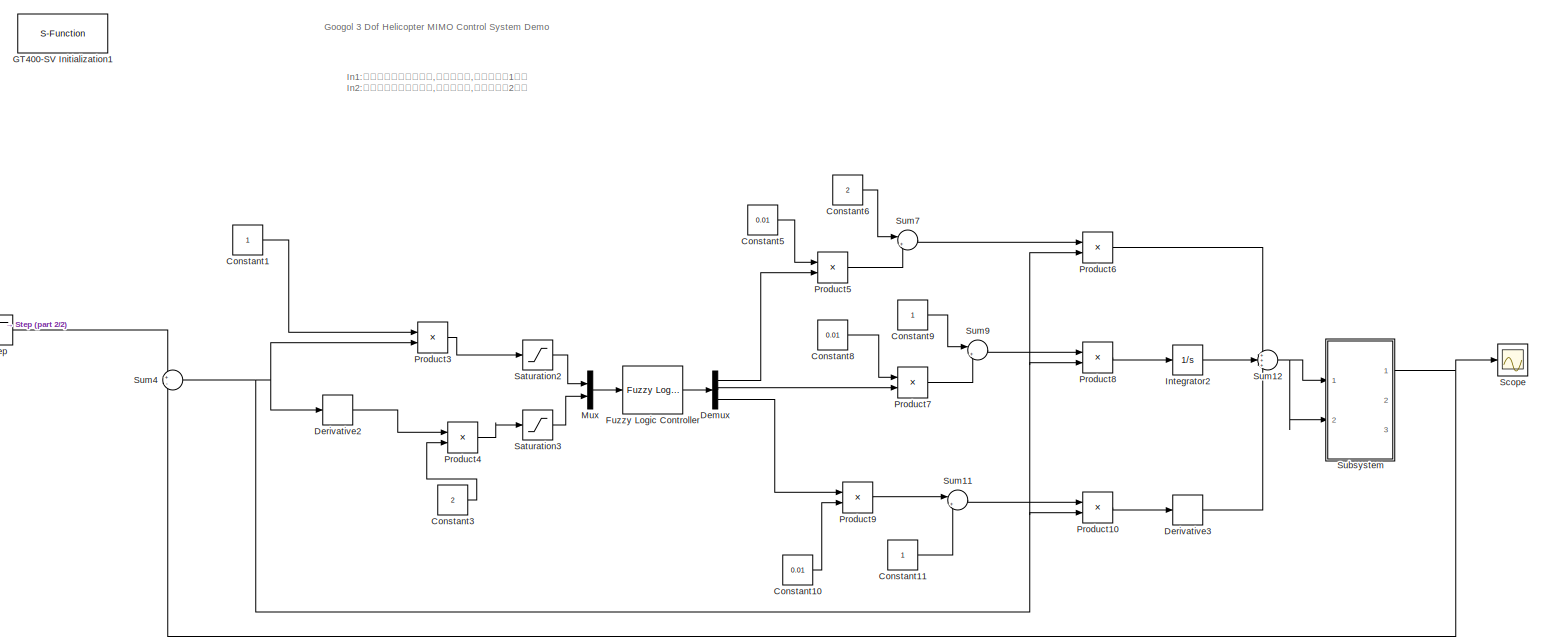
[diagram: root canvas - part 1/2, most of the canvas]
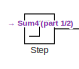
[diagram: root canvas - part 2/2, middle left region]
MODEL slx_5f1532d0b4ba
KIND model
BLOCK [Constant] Constant1
BLOCK [Constant] Constant10
  Value = 0.01
BLOCK [Constant] Constant11
BLOCK [Constant] Constant3
  Value = 2
BLOCK [Constant] Constant5
  Value = 0.01
BLOCK [Constant] Constant6
  Value = 2
BLOCK [Constant] Constant8
  Value = 0.01
BLOCK [Constant] Constant9
BLOCK [Demux] Demux
  DisplayOption = bar
  Outputs = 3
  Ports = [1, 3]
BLOCK [Derivative] Derivative2
BLOCK [Derivative] Derivative3
BLOCK [Reference] Fuzzy Logic Controller  REF=fuzblock/Fuzzy Logic   (lib defined in mdl_858b3b3e7478)
Controller
  Ports = [1, 1]
  SourceBlock = fuzblock/Fuzzy Logic \nController
  SourceType = FIS
  fis = [fy]
BLOCK [S-Function] GT400-SV Initialization1
  EnableBusSupport = off
  FunctionName = Initialize
  Parameters = openloop
  Ports = []
  Priority = 0
BLOCK [Integrator] Integrator2
  Ports = [1, 1]
BLOCK [Mux] Mux
  DisplayOption = bar
  Inputs = 2
  Ports = [2, 1]
BLOCK [Product] Product10
  InputSameDT = off
  OutDataTypeStr = Inherit: Inherit via internal rule
  Ports = [2, 1]
  RndMeth = Floor
  SaturateOnIntegerOverflow = off
BLOCK [Product] Product3
  InputSameDT = off
  OutDataTypeStr = Inherit: Inherit via internal rule
  Ports = [2, 1]
  RndMeth = Floor
  SaturateOnIntegerOverflow = off
BLOCK [Product] Product4
  InputSameDT = off
  OutDataTypeStr = Inherit: Inherit via internal rule
  Ports = [2, 1]
  RndMeth = Floor
  SaturateOnIntegerOverflow = off
BLOCK [Product] Product5
  InputSameDT = off
  OutDataTypeStr = Inherit: Inherit via internal rule
  Ports = [2, 1]
  RndMeth = Floor
  SaturateOnIntegerOverflow = off
BLOCK [Product] Product6
  InputSameDT = off
  OutDataTypeStr = Inherit: Inherit via internal rule
  Ports = [2, 1]
  RndMeth = Floor
  SaturateOnIntegerOverflow = off
BLOCK [Product] Product7
  InputSameDT = off
  OutDataTypeStr = Inherit: Inherit via internal rule
  Ports = [2, 1]
  RndMeth = Floor
  SaturateOnIntegerOverflow = off
BLOCK [Product] Product8
  InputSameDT = off
  OutDataTypeStr = Inherit: Inherit via internal rule
  Ports = [2, 1]
  RndMeth = Floor
  SaturateOnIntegerOverflow = off
BLOCK [Product] Product9
  InputSameDT = off
  OutDataTypeStr = Inherit: Inherit via internal rule
  Ports = [2, 1]
  RndMeth = Floor
  SaturateOnIntegerOverflow = off
BLOCK [Saturate] Saturation2
  InputPortMap = u0
  LowerLimit = -3
  Ports = [1, 1]
  UpperLimit = 3
BLOCK [Saturate] Saturation3
  InputPortMap = u0
  LowerLimit = -3
  Ports = [1, 1]
  UpperLimit = 3
BLOCK [Scope] Scope
  DataFormat = StructureWithTime
  Floating = off
  MaxDataPoints = 500000000
  NumInputPorts = 1
  Ports = [1]
  SaveName = ScopeData2
  SaveToWorkspace = on
  ShowLegends = off
BLOCK [Step] Step
  After = 0.4
  SampleTime = 0
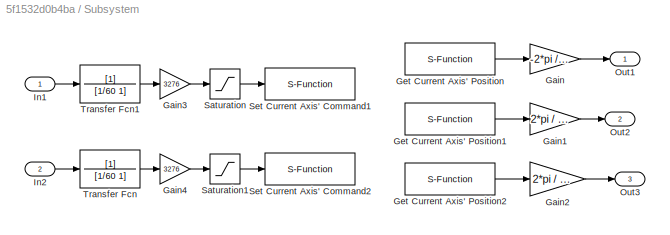
BLOCK [SubSystem] Subsystem
  FunctionWithSeparateData = off
  MaskHideContents = off
  MinAlgLoopOccurrences = off
  Opaque = off
  Ports = [2, 3]
  PropExecContextOutsideSubsystem = off
  RTWSystemCode = Auto
  RequestExecContextInheritance = off
BLOCK [Gain] Subsystem/Gain
  Gain = -2*pi / 2400
BLOCK [Gain] Subsystem/Gain1
  Gain = 2*pi / 2400
BLOCK [Gain] Subsystem/Gain2
  Gain = 2*pi / 2400
BLOCK [Gain] Subsystem/Gain3
  Gain = 3276
  OutDataTypeStr = Inherit: Inherit via internal rule
  ParamDataTypeStr = Inherit: Inherit via internal rule
  SaturateOnIntegerOverflow = off
BLOCK [Gain] Subsystem/Gain4
  Gain = 3276
  OutDataTypeStr = Inherit: Inherit via internal rule
  ParamDataTypeStr = Inherit: Inherit via internal rule
  SaturateOnIntegerOverflow = off
BLOCK [S-Function] Subsystem/Get Current Axis' Position
  EnableBusSupport = off
  FunctionName = GetPos
  Parameters = axis
  Ports = [0, 1]
  Priority = 1
BLOCK [S-Function] Subsystem/Get Current Axis' Position1
  EnableBusSupport = off
  FunctionName = GetPos
  Parameters = axis
  Ports = [0, 1]
  Priority = 1
BLOCK [S-Function] Subsystem/Get Current Axis' Position2
  EnableBusSupport = off
  FunctionName = GetPos
  Parameters = axis
  Ports = [0, 1]
  Priority = 1
BLOCK [Inport] Subsystem/In1
  IconDisplay = Port number
BLOCK [Inport] Subsystem/In2
  IconDisplay = Port number
  Port = 2
BLOCK [Outport] Subsystem/Out1
  IconDisplay = Port number
BLOCK [Outport] Subsystem/Out2
  IconDisplay = Port number
  Port = 2
BLOCK [Outport] Subsystem/Out3
  IconDisplay = Port number
  Port = 3
BLOCK [Saturate] Subsystem/Saturation
  InputPortMap = u0
  LowerLimit = 0
  Ports = [1, 1]
  UpperLimit = 9000
BLOCK [Saturate] Subsystem/Saturation1
  InputPortMap = u0
  LowerLimit = 0
  Ports = [1, 1]
  UpperLimit = 9000
BLOCK [S-Function] Subsystem/Set Current Axis' Command1
  EnableBusSupport = off
  FunctionName = SetMtrCmd
  Parameters = axis
  Ports = [1]
  Priority = 1
BLOCK [S-Function] Subsystem/Set Current Axis' Command2
  EnableBusSupport = off
  FunctionName = SetMtrCmd
  Parameters = axis
  Ports = [1]
  Priority = 1
BLOCK [TransferFcn] Subsystem/Transfer Fcn
  Denominator = [1/60 1]
BLOCK [TransferFcn] Subsystem/Transfer Fcn1
  Denominator = [1/60 1]
BLOCK [Sum] Sum11
  IconShape = round
  InputSameDT = off
  Inputs = |++
  OutDataTypeStr = Inherit: Inherit via internal rule
  Ports = [2, 1]
  SaturateOnIntegerOverflow = off
BLOCK [Sum] Sum12
  IconShape = round
  InputSameDT = off
  Inputs = +++
  OutDataTypeStr = Inherit: Inherit via internal rule
  Ports = [3, 1]
  SaturateOnIntegerOverflow = off
BLOCK [Sum] Sum4
  IconShape = round
  InputSameDT = off
  Inputs = +-
  OutDataTypeStr = Inherit: Inherit via internal rule
  Ports = [2, 1]
  SaturateOnIntegerOverflow = off
BLOCK [Sum] Sum7
  IconShape = round
  InputSameDT = off
  Inputs = |++
  OutDataTypeStr = Inherit: Inherit via internal rule
  Ports = [2, 1]
  SaturateOnIntegerOverflow = off
BLOCK [Sum] Sum9
  IconShape = round
  InputSameDT = off
  Inputs = |++
  OutDataTypeStr = Inherit: Inherit via internal rule
  Ports = [2, 1]
  SaturateOnIntegerOverflow = off
ANNOTATION (root): Googol 3 Dof Helicopter MIMO Control System Demo
ANNOTATION (root): In1:从机尾往螺旋桨方向看,右侧螺旋桨,对应手册的1号桨 In2:从机尾往螺旋桨方向看,左侧螺旋桨,对应手册的2号桨
LINE Constant10:1 -> Product9:2
LINE Constant11:1 -> Sum11:2
LINE Constant1:1 -> Product3:1
LINE Constant3:1 -> Product4:2
LINE Constant5:1 -> Product5:1
LINE Constant6:1 -> Sum7:1
LINE Constant8:1 -> Product7:1
LINE Constant9:1 -> Sum9:1
LINE Demux:1 -> Product5:2
LINE Demux:2 -> Product7:2
LINE Demux:3 -> Product9:1
LINE Derivative2:1 -> Product4:1
LINE Derivative3:1 -> Sum12:3
LINE Fuzzy Logic Controller:1 -> Demux:1
LINE Integrator2:1 -> Sum12:2
LINE Mux:1 -> Fuzzy Logic Controller:1
LINE Product10:1 -> Derivative3:1
LINE Product3:1 -> Saturation2:1
LINE Product4:1 -> Saturation3:1
LINE Product5:1 -> Sum7:2
LINE Product6:1 -> Sum12:1
LINE Product7:1 -> Sum9:2
LINE Product8:1 -> Integrator2:1
LINE Product9:1 -> Sum11:1
LINE Saturation2:1 -> Mux:1
LINE Saturation3:1 -> Mux:2
LINE Step:1 -> Sum4:1
LINE Subsystem/Gain1:1 -> Subsystem/Out2:1
LINE Subsystem/Gain2:1 -> Subsystem/Out3:1
LINE Subsystem/Gain3:1 -> Subsystem/Saturation:1
LINE Subsystem/Gain4:1 -> Subsystem/Saturation1:1
LINE Subsystem/Gain:1 -> Subsystem/Out1:1
LINE Subsystem/Get Current Axis' Position1:1 -> Subsystem/Gain1:1
LINE Subsystem/Get Current Axis' Position2:1 -> Subsystem/Gain2:1
LINE Subsystem/Get Current Axis' Position:1 -> Subsystem/Gain:1
LINE Subsystem/In1:1 -> Subsystem/Transfer Fcn1:1
LINE Subsystem/In2:1 -> Subsystem/Transfer Fcn:1
LINE Subsystem/Saturation1:1 -> Subsystem/Set Current Axis' Command2:1
LINE Subsystem/Saturation:1 -> Subsystem/Set Current Axis' Command1:1
LINE Subsystem/Transfer Fcn1:1 -> Subsystem/Gain3:1
LINE Subsystem/Transfer Fcn:1 -> Subsystem/Gain4:1
NET Subsystem:1 -> Scope:1, Sum4:2
LINE Sum11:1 -> Product10:1
NET Sum12:1 -> Subsystem:1, Subsystem:2
NET Sum4:1 -> Derivative2:1, Product10:2, Product3:2, Product6:2, Product8:2
LINE Sum7:1 -> Product6:1
LINE Sum9:1 -> Product8:1
note: NET lines group one-source signal fan-out (src -> all destinations, sorted); 1:1 wires keep LINE
